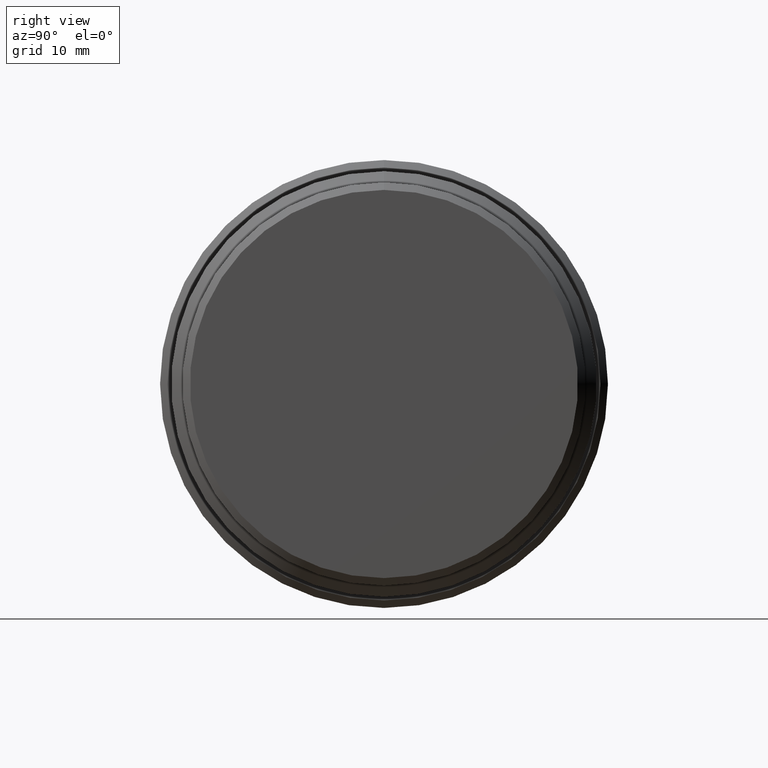
[diagram: clean part render]
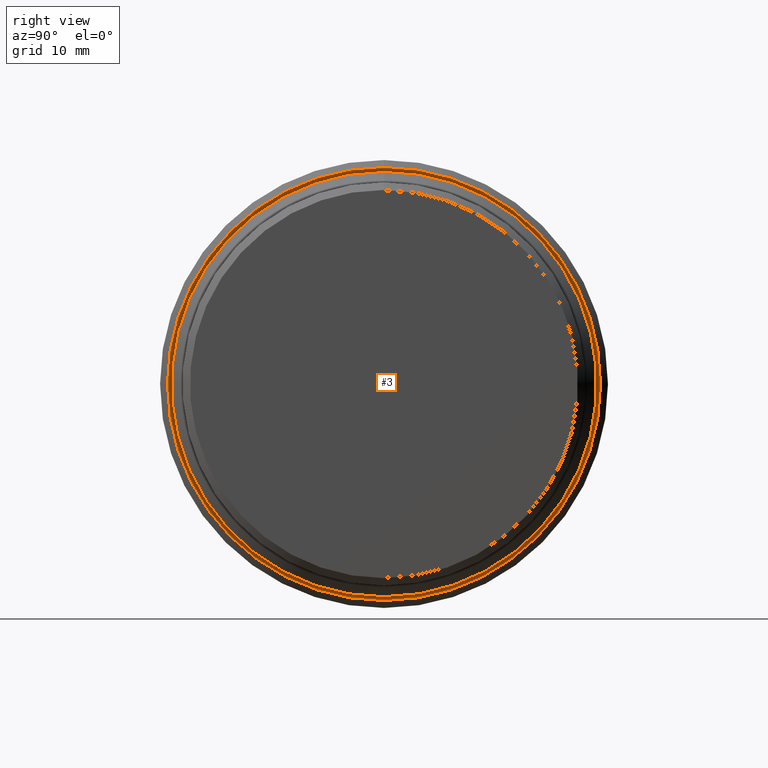
[diagram: same view with one face highlighted and labeled with its STEP entity id]
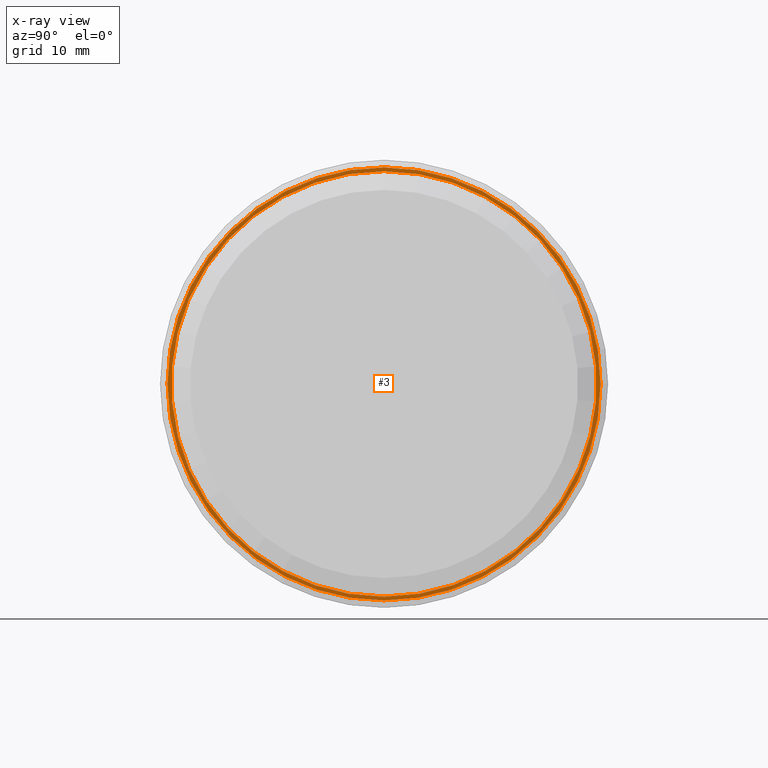
[diagram: x-ray of the same camera — body ghosted, the highlighted face saturated]
A machine part, right view. The second image highlights one B-rep face of the part: STEP entity #3.
The next image is the same camera in x-ray: the body ghosted, the highlighted face saturated — about 0% of this face is hidden behind the body in this view.
In plain terms, the highlighted planar face has unit normal (-1, 0, -0).
Its self-contained STEP definition (entity closure, byte-faithful):
#3 = ADVANCED_FACE ( 'NONE', ( #464, #392 ), #241, .F. ) ;
#9 = DIRECTION ( 'NONE',  ( -1.000000000000000000, -0.000000000000000000, -0.000000000000000000 ) ) ;
#12 = EDGE_LOOP ( 'NONE', ( #61, #316 ) ) ;
#16 = AXIS2_PLACEMENT_3D ( 'NONE', #378, #339, #145 ) ;
#32 = CIRCLE ( 'NONE', #16, 29.00000000000005329 ) ;
#38 = CARTESIAN_POINT ( 'NONE',  ( 10.00000000000000888, 0.000000000000000000, 0.000000000000000000 ) ) ;
#39 = DIRECTION ( 'NONE',  ( 0.000000000000000000, 0.000000000000000000, 1.000000000000000000 ) ) ;
#46 = DIRECTION ( 'NONE',  ( 1.000000000000000000, 0.000000000000000000, 0.000000000000000000 ) ) ;
#61 = ORIENTED_EDGE ( 'NONE', *, *, #383, .T. ) ;
#72 = CIRCLE ( 'NONE', #243, 28.50000000000000000 ) ;
#74 = CARTESIAN_POINT ( 'NONE',  ( 10.00000000000000000, 30.00000000000000000, 0.000000000000000000 ) ) ;
#82 = CARTESIAN_POINT ( 'NONE',  ( 10.00000000000000000, 0.000000000000000000, 29.00000000000005329 ) ) ;
#92 = VERTEX_POINT ( 'NONE', #137 ) ;
#111 = AXIS2_PLACEMENT_3D ( 'NONE', #38, #9, #328 ) ;
#131 = EDGE_CURVE ( 'NONE', #184, #300, #329, .T. ) ;
#134 = DIRECTION ( 'NONE',  ( -0.000000000000000000, 0.000000000000000000, 1.000000000000000000 ) ) ;
#136 = DIRECTION ( 'NONE',  ( -1.000000000000000000, 0.000000000000000000, -0.000000000000000000 ) ) ;
#137 = CARTESIAN_POINT ( 'NONE',  ( 10.00000000000000888, 3.490243377569956456E-15, -28.50000000000000000 ) ) ;
#145 = DIRECTION ( 'NONE',  ( 0.000000000000000000, 0.000000000000000000, 1.000000000000000000 ) ) ;
#184 = VERTEX_POINT ( 'NONE', #82 ) ;
#202 = CARTESIAN_POINT ( 'NONE',  ( 10.00000000000000888, 0.000000000000000000, 28.50000000000000000 ) ) ;
#230 = EDGE_CURVE ( 'NONE', #92, #468, #72, .T. ) ;
#241 = PLANE ( 'NONE',  #454 ) ;
#243 = AXIS2_PLACEMENT_3D ( 'NONE', #436, #432, #39 ) ;
#252 = CARTESIAN_POINT ( 'NONE',  ( 10.00000000000000000, 0.000000000000000000, 0.000000000000000000 ) ) ;
#256 = CIRCLE ( 'NONE', #111, 28.50000000000000000 ) ;
#269 = EDGE_LOOP ( 'NONE', ( #335, #348 ) ) ;
#297 = AXIS2_PLACEMENT_3D ( 'NONE', #252, #46, #369 ) ;
#300 = VERTEX_POINT ( 'NONE', #453 ) ;
#316 = ORIENTED_EDGE ( 'NONE', *, *, #230, .T. ) ;
#328 = DIRECTION ( 'NONE',  ( 0.000000000000000000, 0.000000000000000000, 1.000000000000000000 ) ) ;
#329 = CIRCLE ( 'NONE', #297, 29.00000000000005329 ) ;
#335 = ORIENTED_EDGE ( 'NONE', *, *, #131, .T. ) ;
#339 = DIRECTION ( 'NONE',  ( 1.000000000000000000, 0.000000000000000000, 0.000000000000000000 ) ) ;
#348 = ORIENTED_EDGE ( 'NONE', *, *, #357, .T. ) ;
#357 = EDGE_CURVE ( 'NONE', #300, #184, #32, .T. ) ;
#369 = DIRECTION ( 'NONE',  ( 0.000000000000000000, 0.000000000000000000, 1.000000000000000000 ) ) ;
#378 = CARTESIAN_POINT ( 'NONE',  ( 10.00000000000000000, 0.000000000000000000, 0.000000000000000000 ) ) ;
#383 = EDGE_CURVE ( 'NONE', #468, #92, #256, .T. ) ;
#392 = FACE_BOUND ( 'NONE', #12, .T. ) ;
#432 = DIRECTION ( 'NONE',  ( -1.000000000000000000, -0.000000000000000000, -0.000000000000000000 ) ) ;
#436 = CARTESIAN_POINT ( 'NONE',  ( 10.00000000000000888, 0.000000000000000000, 0.000000000000000000 ) ) ;
#453 = CARTESIAN_POINT ( 'NONE',  ( 10.00000000000000000, 3.612708057484694759E-15, -29.00000000000005329 ) ) ;
#454 = AXIS2_PLACEMENT_3D ( 'NONE', #74, #136, #134 ) ;
#464 = FACE_OUTER_BOUND ( 'NONE', #269, .T. ) ;
#468 = VERTEX_POINT ( 'NONE', #202 ) ;